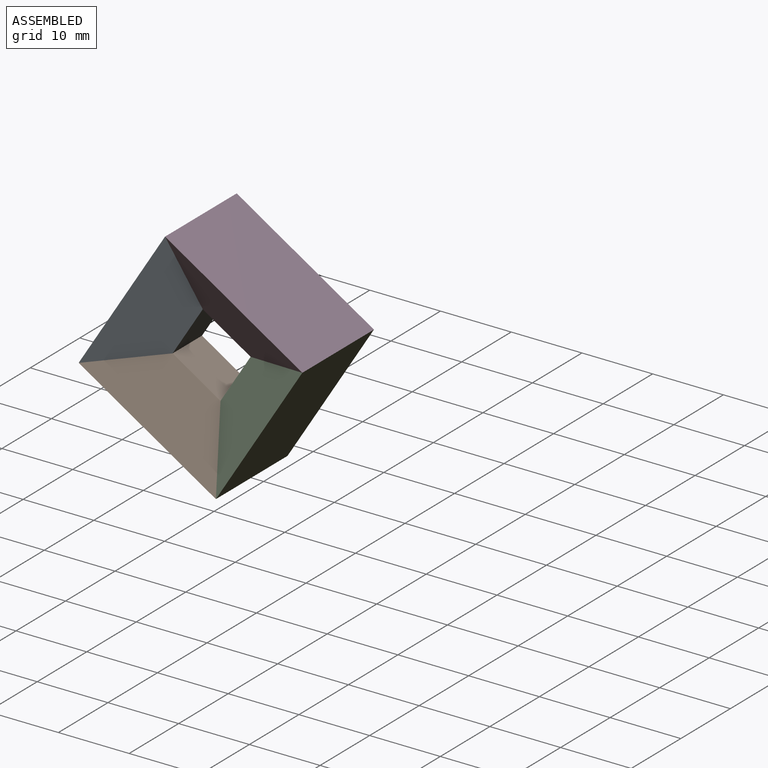
[diagram: assembled view]
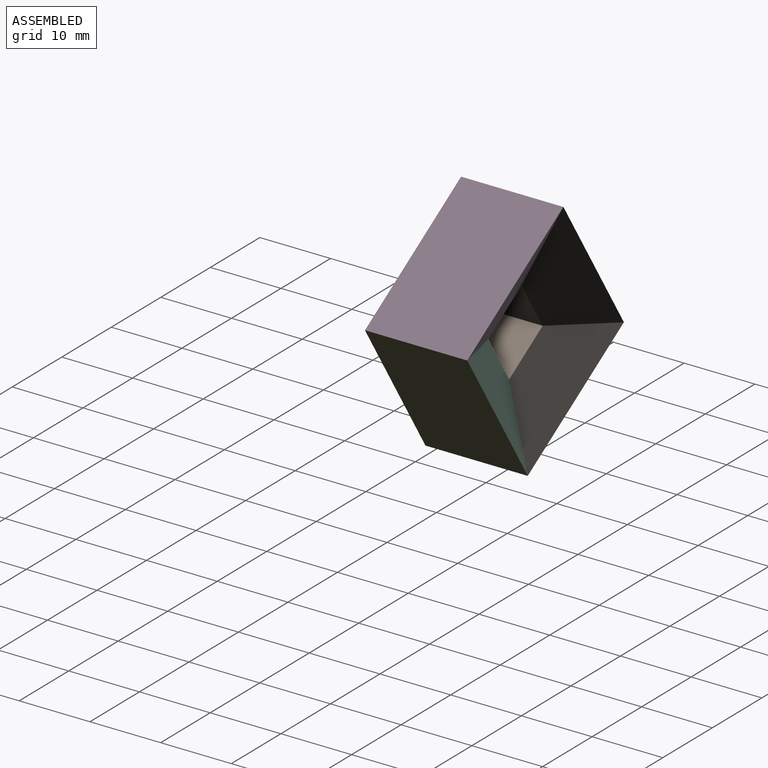
[diagram: assembled view, second angle]
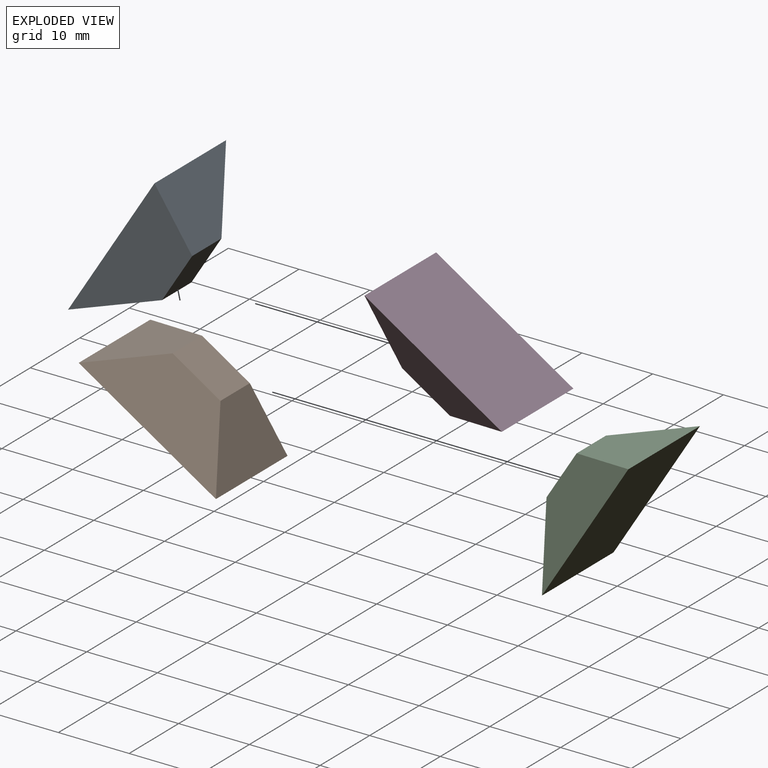
[diagram: exploded view]
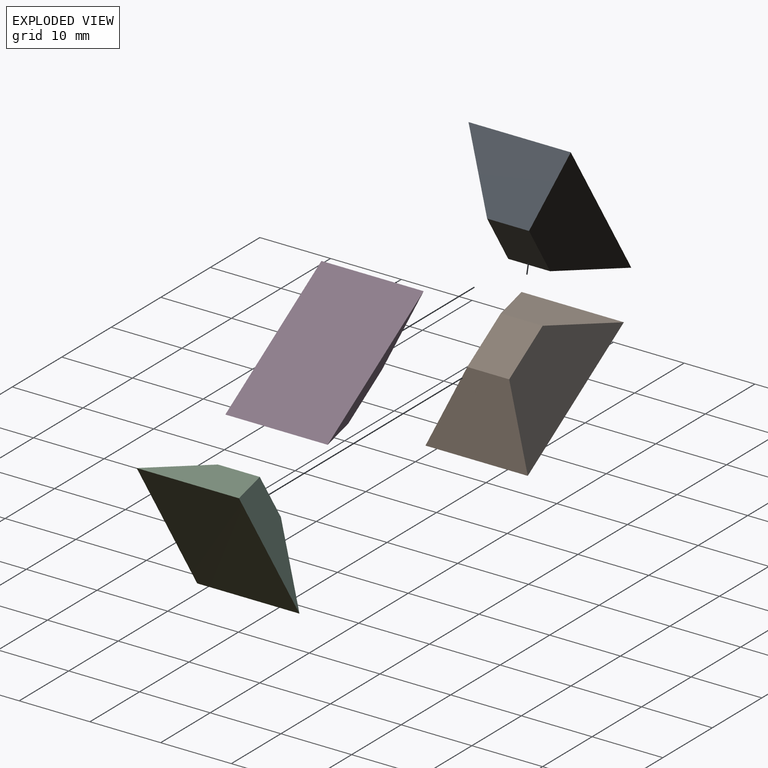
[diagram: exploded view, second angle]
ASSEMBLY  parts=4 mates=3
PART A: 6 faces, bbox 22.9x14.5x7.5 mm
  f0: plane 22.93x14.46mm, normal (0,0,1), area 331.7mm2, adj f1,f3,f4,f5
  f1: plane 14.46x7.47mm, normal (-0.71,0,-0.71), area 107.7mm2, adj f0,f2,f4,f5
  f2: plane 8x5.93mm, normal (0,0,-1), area 47.4mm2, adj f1,f3,f4,f5
  f3: plane 14.46x7.47mm, normal (0.71,0,-0.71), area 107.7mm2, adj f0,f2,f4,f5
  f4: plane 22.93x7.47mm, normal (0,0.87,-0.5), area 133mm2, adj f0,f1,f2,f3
  f5: plane 22.93x7.47mm, normal (0,-0.87,-0.5), area 133mm2, adj f0,f1,f2,f3
PART B: same geometry as A
PART C: same geometry as A
PART D: same geometry as A
PLACE A rot(axis=(0,-1,0),57.8deg) t=(21.25,-8.39,-13.35)mm
PLACE B rot(axis=(0,-1,0),147.8deg) t=(17.31,-8.39,4)mm
PLACE C rot(axis=(0,1,0),122.2deg) t=(-0.04,-8.39,0.06)mm
PLACE D rot(axis=(0.28,0,0.96),180deg) t=(3.9,-8.39,-17.29)mm
MATE fastened B.f3 <-> A.f1  axis (-0.22,0,0.98) through (-0.78,-8.39,-9.23)mm
MATE fastened C.f3 <-> B.f1  axis (-0.98,0,-0.22) through (13.19,-8.39,-18.03)mm
MATE fastened D.f3 <-> A.f3  axis (-0.98,0,-0.22) through (8.02,-8.39,4.74)mm
